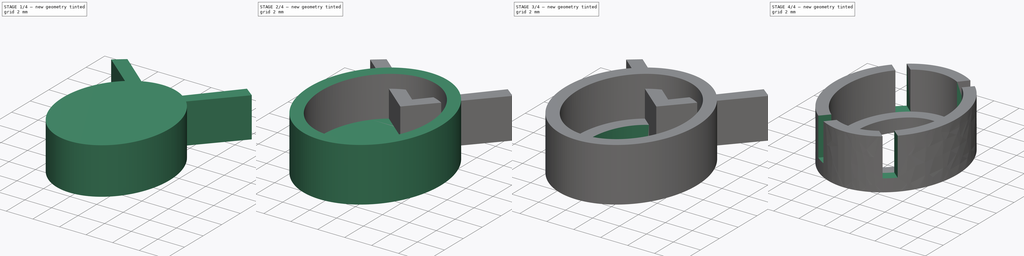
[diagram: build sequence overview — one tinted view per stage of 4, left to right]
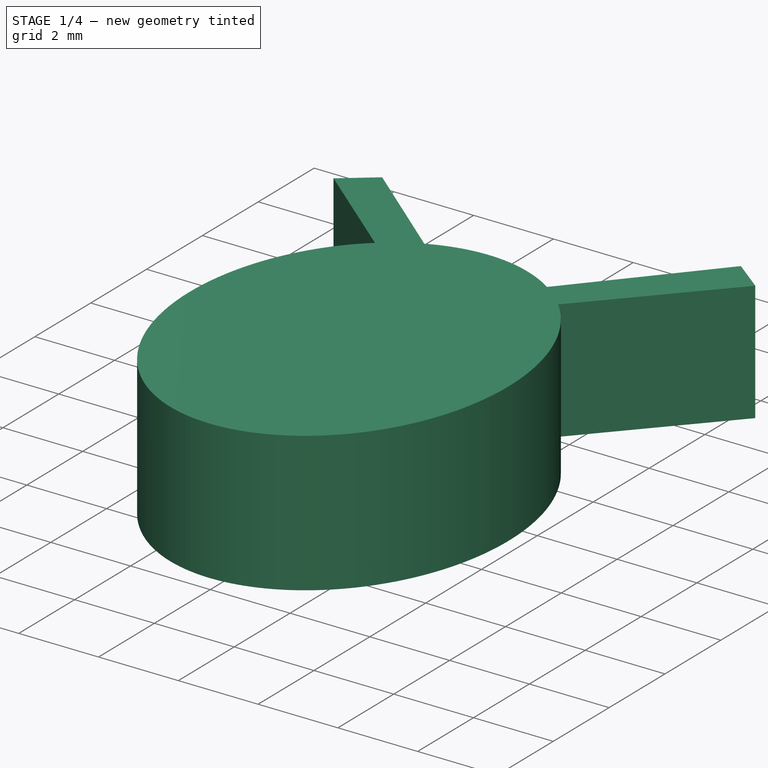
[diagram: stage 1 of 4 — iso view after this stage's code; geometry added in this stage tinted green]
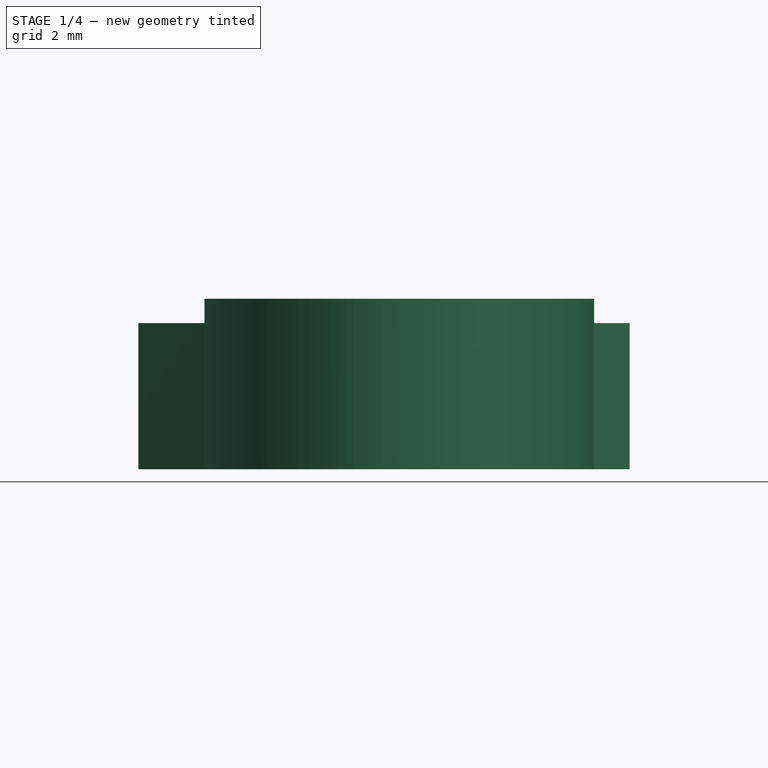
[diagram: stage 1 of 4 — front view after this stage's code; geometry added in this stage tinted green]
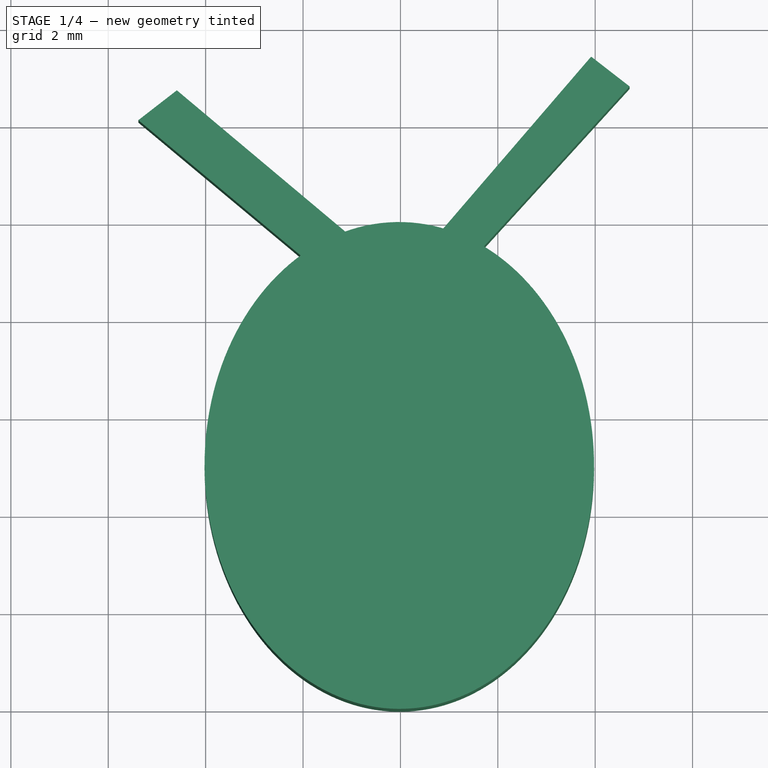
[diagram: stage 1 of 4 — top view after this stage's code; geometry added in this stage tinted green]
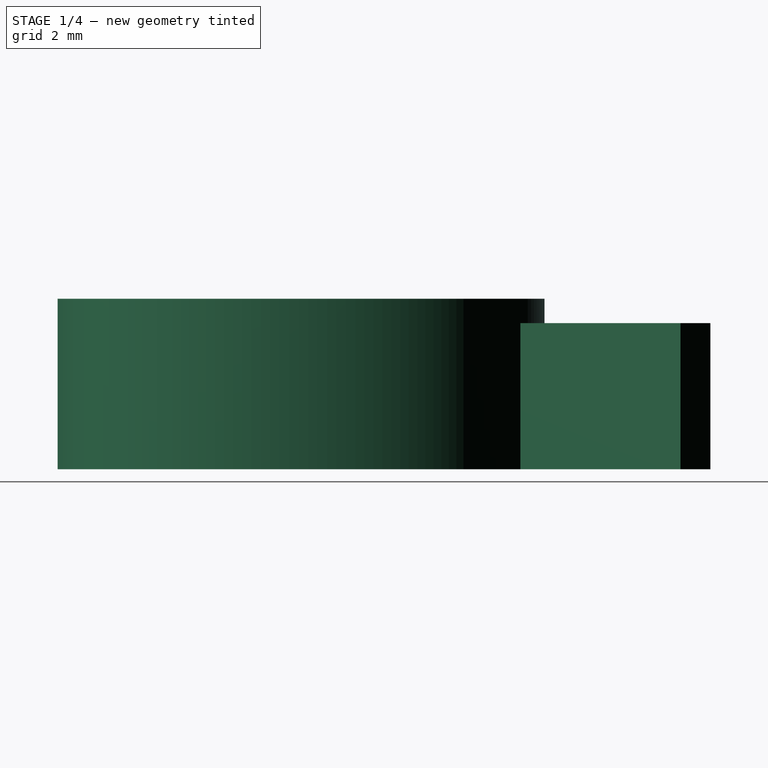
[diagram: stage 1 of 4 — right view after this stage's code; geometry added in this stage tinted green]
FCSTD DOCUMENT  (FreeCAD 0.19R)
Label: 10mmx8mm_oval_cabuchon
License: All rights reserved
LicenseURL: http://en.wikipedia.org/wiki/All_rights_reserved
objects: Sketcher::SketchObject×5, PartDesign::Pad×5, PartDesign::Body×5, Part::Cut×4, App::MeasureDistance×2
note: 24 computed .brp shape members not serialized (recipe doc carries the construction recipe); baked Part::Feature solids carry a one-line shape summary decoded from their .brp

FEATURE [Sketcher::SketchObject] Sketch001
  FullyConstrained = false
  MapMode = 5
  Support = -> [XY_Plane001]
  sketch-geometry (5):
    g0: Ellipse CenterX=-0.0228966 CenterY=4.99994 CenterZ=0 NormalX=0 NormalY=0 NormalZ=1 MajorRadius=5 MinorRadius=4 AngleXU=-1.56764
    g1: LineSegment StartX=-0.00709564 StartY=-3.02908e-05 StartZ=0 EndX=-0.0386976 EndY=9.99992 EndZ=0
    g2: LineSegment StartX=3.97708 StartY=5.01259 StartZ=0 EndX=-4.02288 EndY=4.9873 EndZ=0
    g3: GeomPoint X=-0.013416 Y=1.99996 Z=0
    g4: GeomPoint X=-0.0323772 Y=7.99993 Z=0
  constraints (4):
    c: InternalAlignment(g1-g4 -> g0) x4
    c: PointOnObject(g-1,g0)
    c: Distance(g1) = 10
    c: Distance(g2) = 8
FEATURE [PartDesign::Body] Body002
  Group = -> [Sketch002,Pad001]
  Origin = -> Origin002
  Placement = pos=(0,-0.85,0) rot=(0,0,1;0rad)
  Tip = -> Pad001
FEATURE [PartDesign::Pad] Pad002
  Direction = (1,1,1)
  Length = 3.5
  Length2 = 100
  Profile = -> Sketch001
  Type = 0
FEATURE [Sketcher::SketchObject] Sketch005
  FullyConstrained = false
  MapMode = 5
  Support = -> [XY_Plane005]
  sketch-geometry (11):
    g0: Ellipse CenterX=-0.0136565 CenterY=6.72484 CenterZ=0 NormalX=0 NormalY=0 NormalZ=1 MajorRadius=6.725 MinorRadius=5.725 AngleXU=-1.57931
    g1: LineSegment StartX=-0.0709434 StartY=8.80022e-05 StartZ=0 EndX=0.0436305 EndY=13.4496 EndZ=0
    g2: LineSegment StartX=5.71114 StartY=6.67608 StartZ=0 EndX=-5.73845 EndY=6.77361 EndZ=0
    g3: GeomPoint X=-0.0437137 Y=3.19652 Z=0
    g4: GeomPoint X=0.0164007 Y=10.2532 Z=0
    g5: LineSegment StartX=-4.59175 StartY=12.7144 StartZ=0 EndX=0.00451289 EndY=8.85769 EndZ=0
    g6: LineSegment StartX=0.00451289 StartY=8.85769 StartZ=0 EndX=3.91721 EndY=13.4064 EndZ=0
    g7: LineSegment StartX=3.91721 StartY=13.4064 StartZ=0 EndX=4.70737 EndY=12.7935 EndZ=0
    g8: LineSegment StartX=4.70737 StartY=12.7935 StartZ=0 EndX=-0.00604614 EndY=7.6182 EndZ=0
    g9: LineSegment StartX=-0.00604614 StartY=7.6182 StartZ=0 EndX=-5.38191 EndY=12.1015 EndZ=0
    g10: LineSegment StartX=-5.38191 StartY=12.1015 StartZ=0 EndX=-4.59175 EndY=12.7144 EndZ=0
  constraints (21):
    c: InternalAlignment(g1-g4 -> g0) x4
    c: PointOnObject(g-1,g0)
    c: Distance(g1) = 13.45
    c: Distance(g2) = 11.45
    c: PointOnObject(g5,g1)
    c: Coincident(g5,g6)
    c: Coincident(g6,g7)
    c: Coincident(g7,g8)
    c: PointOnObject(g8,g1)
    c: Coincident(g8,g9)
    c: Coincident(g9,g10)
    c: Coincident(g10,g5)
    c: Angle(g5) = -0.698132
    c: Distance(g10) = 1
    c: Distance(g7) = 1
    c: Distance(g5) = 6
    c: Distance(g6) = 6
    c: Distance(g9) = 7
    c: Distance(g8) = 7
    c: Angle(g10) = 0.659734
    c: Angle(g7) = -0.659734
FEATURE [PartDesign::Pad] Pad005
  Direction = (1,1,1)
  Length = 3
  Length2 = 100
  Profile = -> Sketch005
  Type = 0
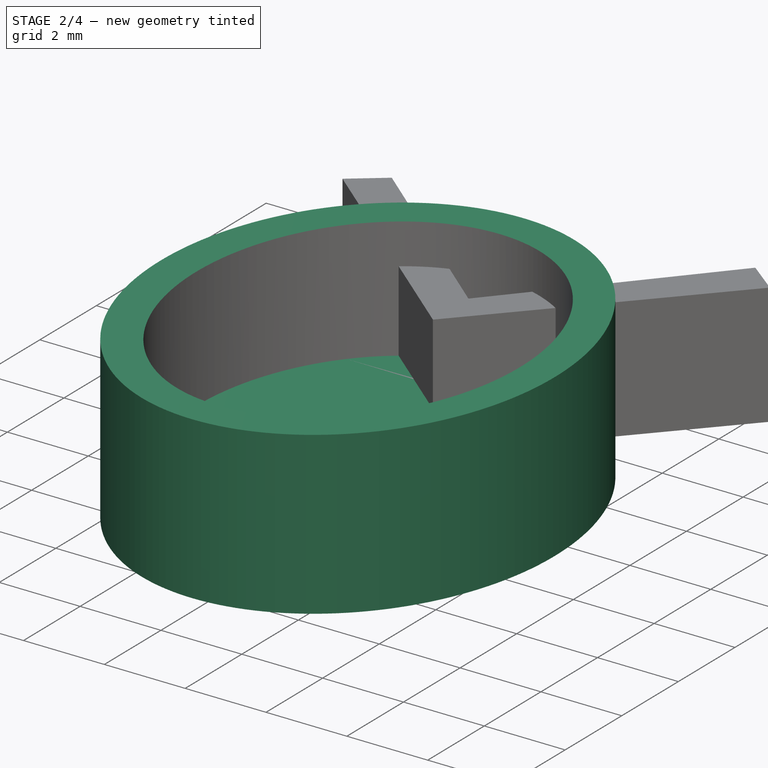
[diagram: stage 2 of 4 — iso view after this stage's code; geometry added in this stage tinted green]
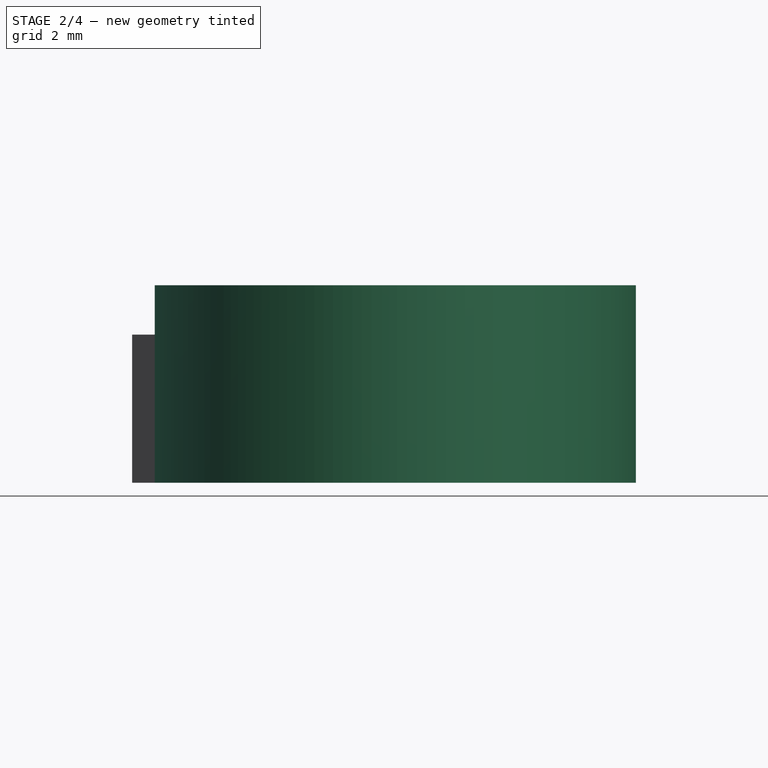
[diagram: stage 2 of 4 — front view after this stage's code; geometry added in this stage tinted green]
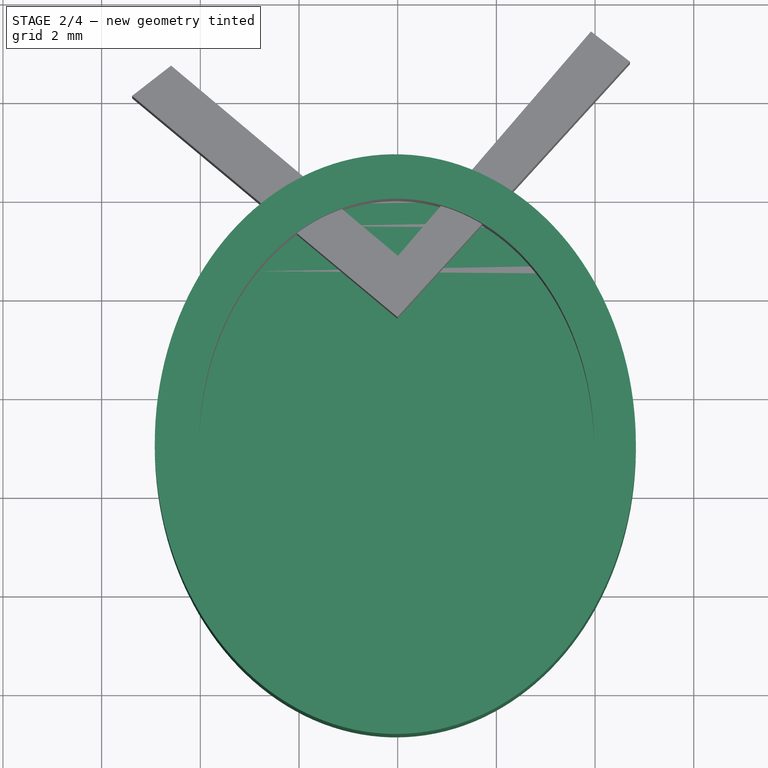
[diagram: stage 2 of 4 — top view after this stage's code; geometry added in this stage tinted green]
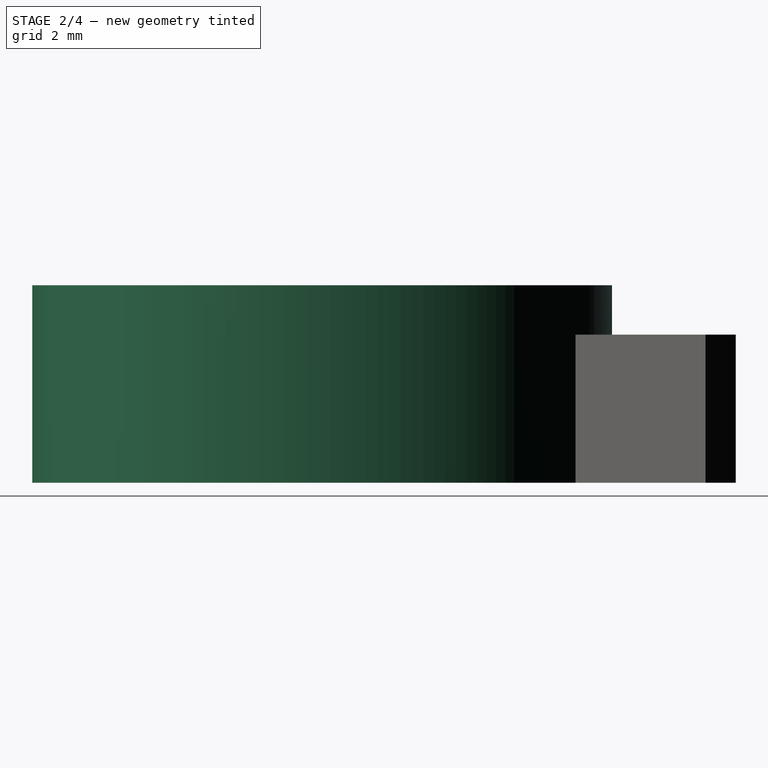
[diagram: stage 2 of 4 — right view after this stage's code; geometry added in this stage tinted green]
FEATURE [Sketcher::SketchObject] Sketch004
  FullyConstrained = false
  MapMode = 5
  Support = -> [XY_Plane004]
  sketch-geometry (11):
    g0: Ellipse CenterX=-0.0136565 CenterY=6.72484 CenterZ=0 NormalX=0 NormalY=0 NormalZ=1 MajorRadius=6.725 MinorRadius=5.725 AngleXU=-1.57931
    g1: LineSegment StartX=-0.0709434 StartY=8.80022e-05 StartZ=0 EndX=0.0436305 EndY=13.4496 EndZ=0
    g2: LineSegment StartX=5.71114 StartY=6.67608 StartZ=0 EndX=-5.73845 EndY=6.77361 EndZ=0
    g3: GeomPoint X=-0.0437137 Y=3.19652 Z=0
    g4: GeomPoint X=0.0164007 Y=10.2532 Z=0
    g5: LineSegment StartX=-4.59175 StartY=12.7144 StartZ=0 EndX=0.00451289 EndY=8.85769 EndZ=0
    g6: LineSegment StartX=0.00451289 StartY=8.85769 StartZ=0 EndX=3.91721 EndY=13.4064 EndZ=0
    g7: LineSegment StartX=3.91721 StartY=13.4064 StartZ=0 EndX=4.70737 EndY=12.7935 EndZ=0
    g8: LineSegment StartX=4.70737 StartY=12.7935 StartZ=0 EndX=-0.00604614 EndY=7.6182 EndZ=0
    g9: LineSegment StartX=-0.00604614 StartY=7.6182 StartZ=0 EndX=-5.38191 EndY=12.1015 EndZ=0
    g10: LineSegment StartX=-5.38191 StartY=12.1015 StartZ=0 EndX=-4.59175 EndY=12.7144 EndZ=0
  constraints (21):
    c: InternalAlignment(g1-g4 -> g0) x4
    c: PointOnObject(g-1,g0)
    c: Distance(g1) = 13.45
    c: Distance(g2) = 11.45
    c: PointOnObject(g5,g1)
    c: Coincident(g5,g6)
    c: Coincident(g6,g7)
    c: Coincident(g7,g8)
    c: PointOnObject(g8,g1)
    c: Coincident(g8,g9)
    c: Coincident(g9,g10)
    c: Coincident(g10,g5)
    c: Angle(g5) = -0.698132
    c: Distance(g10) = 1
    c: Distance(g7) = 1
    c: Distance(g5) = 6
    c: Distance(g6) = 6
    c: Distance(g9) = 7
    c: Distance(g8) = 7
    c: Angle(g10) = 0.659734
    c: Angle(g7) = -0.659734
FEATURE [Sketcher::SketchObject] Sketch002
  FullyConstrained = false
  MapMode = 5
  Support = -> [XY_Plane002]
  sketch-geometry (5):
    g0: Ellipse CenterX=-0.0479555 CenterY=5.8748 CenterZ=0 NormalX=0 NormalY=0 NormalZ=1 MajorRadius=5.875 MinorRadius=4.875 AngleXU=-1.565
    g1: LineSegment StartX=-0.0139029 StartY=-0.000104478 StartZ=0 EndX=-0.0820081 EndY=11.7497 EndZ=0
    g2: LineSegment StartX=4.82696 StartY=5.90305 StartZ=0 EndX=-4.92287 EndY=5.84654 EndZ=0
    g3: GeomPoint X=-0.0289514 Y=2.59613 Z=0
    g4: GeomPoint X=-0.0669596 Y=9.15346 Z=0
  constraints (4):
    c: InternalAlignment(g1-g4 -> g0) x4
    c: PointOnObject(g-1,g0)
    c: Distance(g1) = 11.75
    c: Distance(g2) = 9.75
FEATURE [PartDesign::Pad] Pad001
  Direction = (1,1,1)
  Length = 4
  Length2 = 100
  Profile = -> Sketch002
  Type = 0
FEATURE [PartDesign::Body] Body003
  Group = -> [Sketch003,Pad003]
  Origin = -> Origin003
  Placement = pos=(0,0.875,0) rot=(0,0,1;0rad)
  Tip = -> Pad003
FEATURE [PartDesign::Body] Body001
  Group = -> [Sketch001,Pad002]
  Origin = -> Origin001
  Placement = pos=(0,0,1) rot=(0,0,1;0rad)
  Tip = -> Pad002
FEATURE [Part::Cut] Cut036
  Base = -> Body002
  Tool = -> Body001
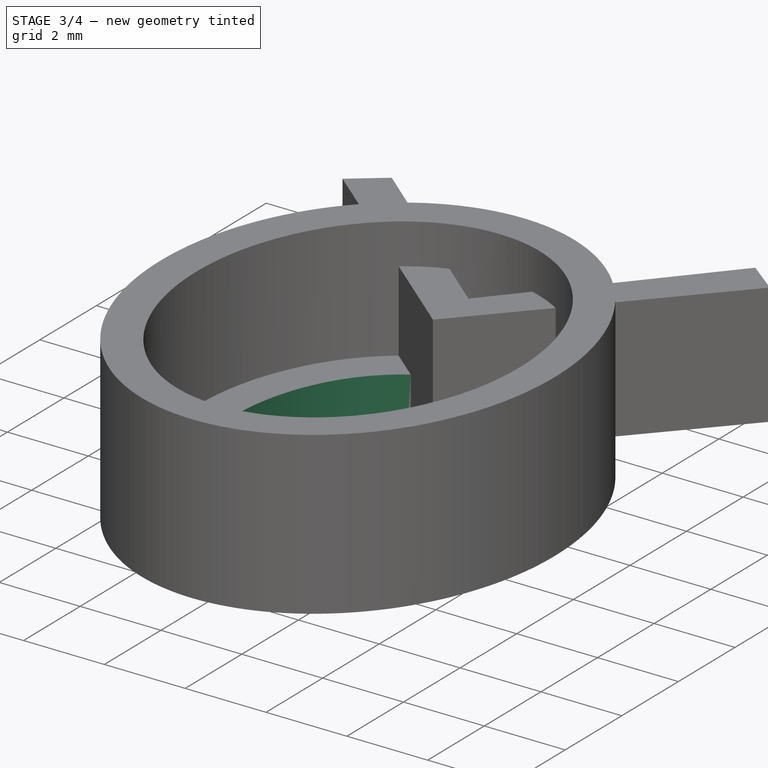
[diagram: stage 3 of 4 — iso view after this stage's code; geometry added in this stage tinted green]
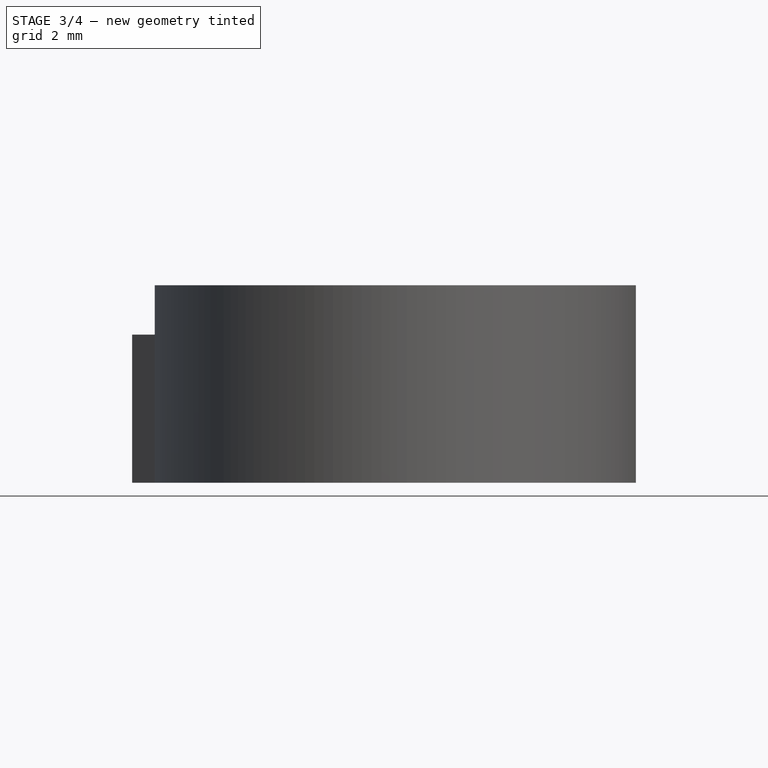
[diagram: stage 3 of 4 — front view after this stage's code; geometry added in this stage tinted green]
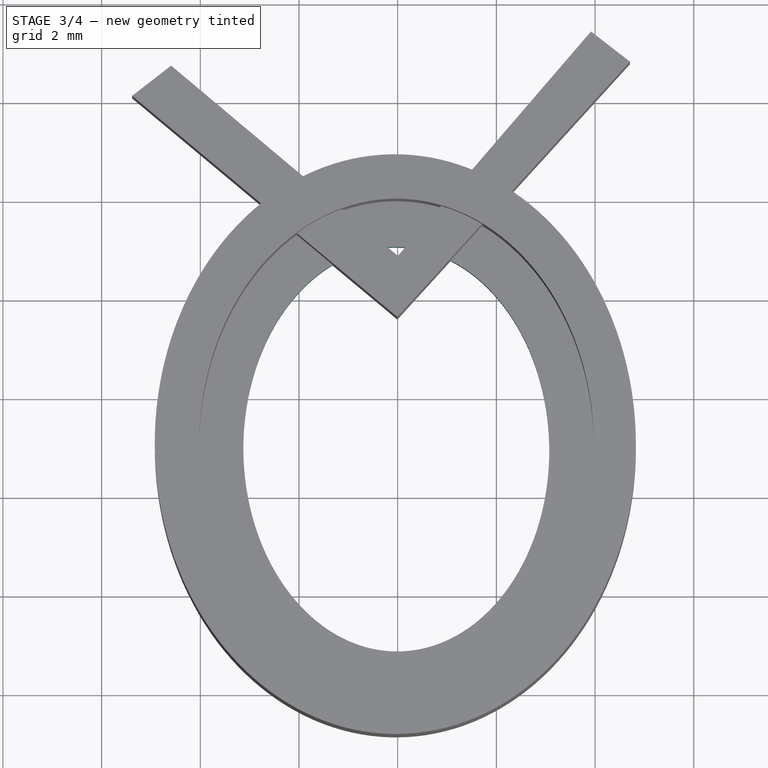
[diagram: stage 3 of 4 — top view after this stage's code; geometry added in this stage tinted green]
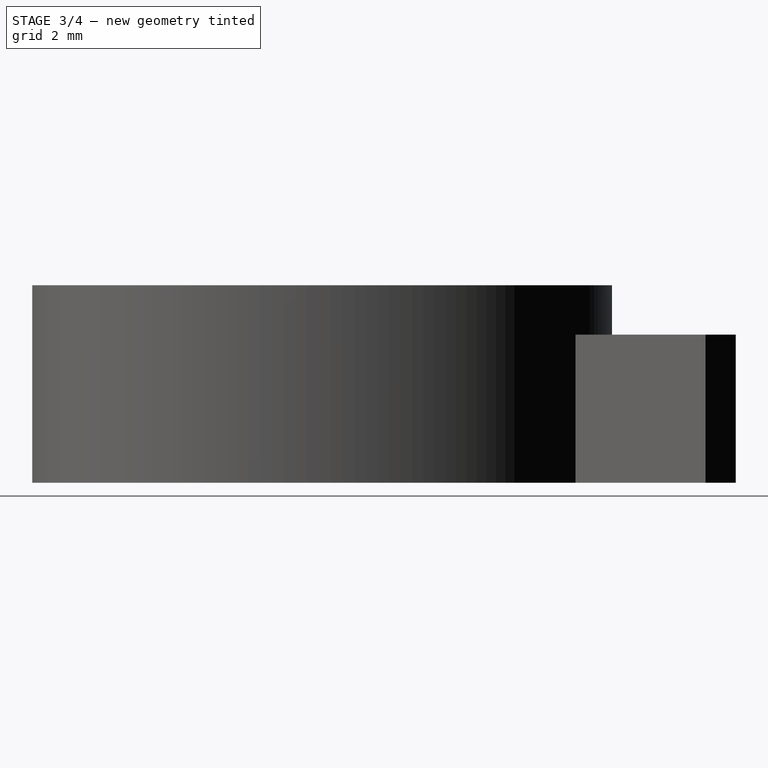
[diagram: stage 3 of 4 — right view after this stage's code; geometry added in this stage tinted green]
FEATURE [Sketcher::SketchObject] Sketch003
  FullyConstrained = false
  MapMode = 5
  Support = -> [XY_Plane003]
  sketch-geometry (5):
    g0: Ellipse CenterX=-0.0280719 CenterY=4.0999 CenterZ=0 NormalX=0 NormalY=0 NormalZ=1 MajorRadius=4.1 MinorRadius=3.1 AngleXU=-1.56035
    g1: LineSegment StartX=0.0147409 StartY=0.000127793 StartZ=0 EndX=-0.0708847 EndY=8.19968 EndZ=0
    g2: LineSegment StartX=3.07176 StartY=4.13227 StartZ=0 EndX=-3.1279 EndY=4.06753 EndZ=0
    g3: GeomPoint X=-5.27023e-05 Y=1.41677 Z=0
    g4: GeomPoint X=-0.0560911 Y=6.78304 Z=0
  constraints (4):
    c: InternalAlignment(g1-g4 -> g0) x4
    c: Tangent(g0,g-1)
    c: Distance(g1) = 8.2
    c: Distance(g2) = 6.2
FEATURE [PartDesign::Pad] Pad003
  Direction = (1,1,1)
  Length = 4.15
  Length2 = 100
  Profile = -> Sketch003
  Type = 0
FEATURE [PartDesign::Pad] Pad004
  Direction = (1,1,1)
  Length = 3
  Length2 = 100
  Profile = -> Sketch004
  Type = 0
FEATURE [PartDesign::Body] Body004
  Group = -> [Sketch004,Pad004]
  Origin = -> Origin004
  Placement = pos=(0,-1.125,1) rot=(0,0,1;0rad)
  Tip = -> Pad004
FEATURE [Part::Cut] Cut037
  Base = -> Cut036
  Tool = -> Body003
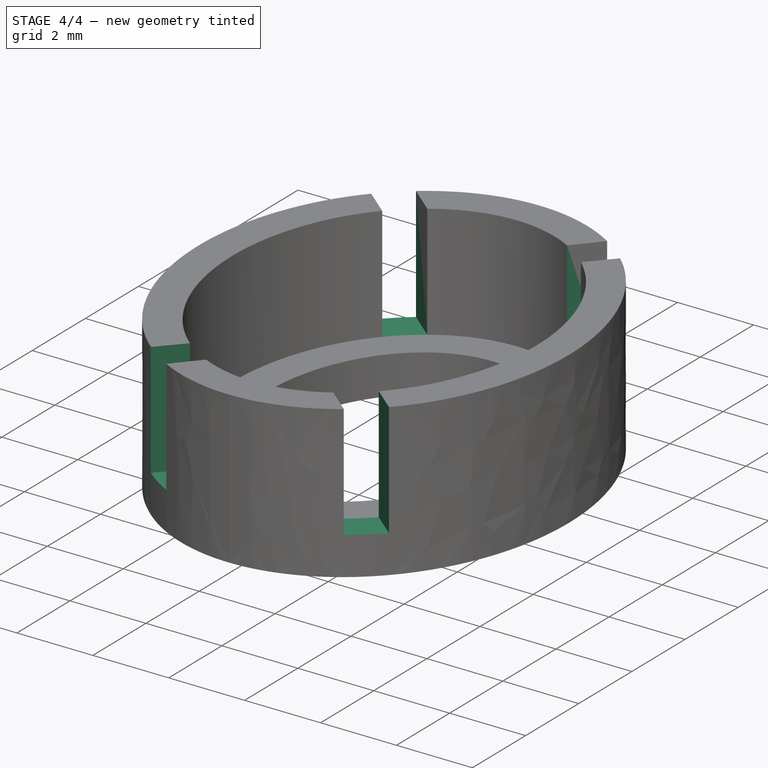
[diagram: stage 4 of 4 — iso view after this stage's code; geometry added in this stage tinted green]
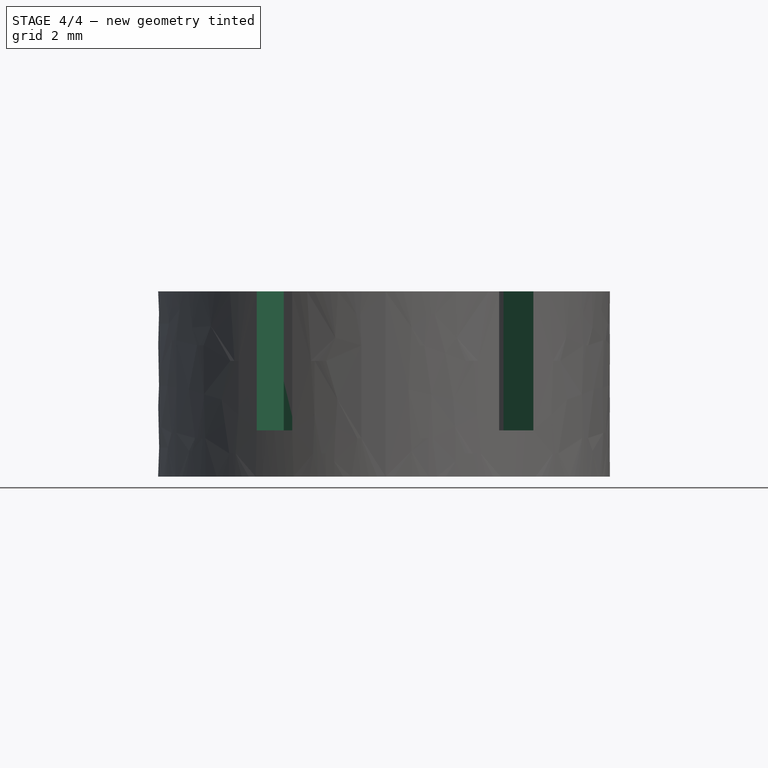
[diagram: stage 4 of 4 — front view after this stage's code; geometry added in this stage tinted green]
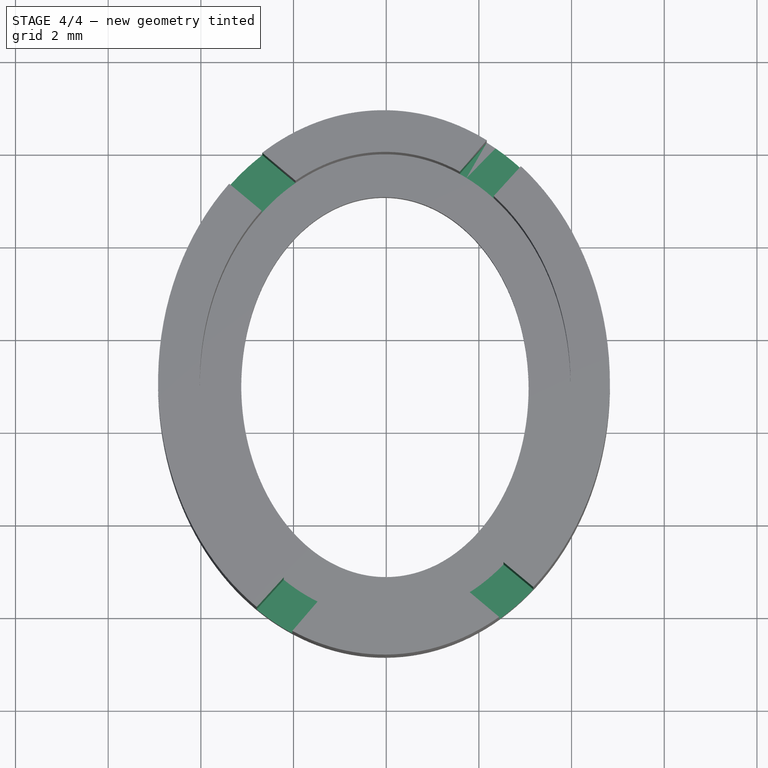
[diagram: stage 4 of 4 — top view after this stage's code; geometry added in this stage tinted green]
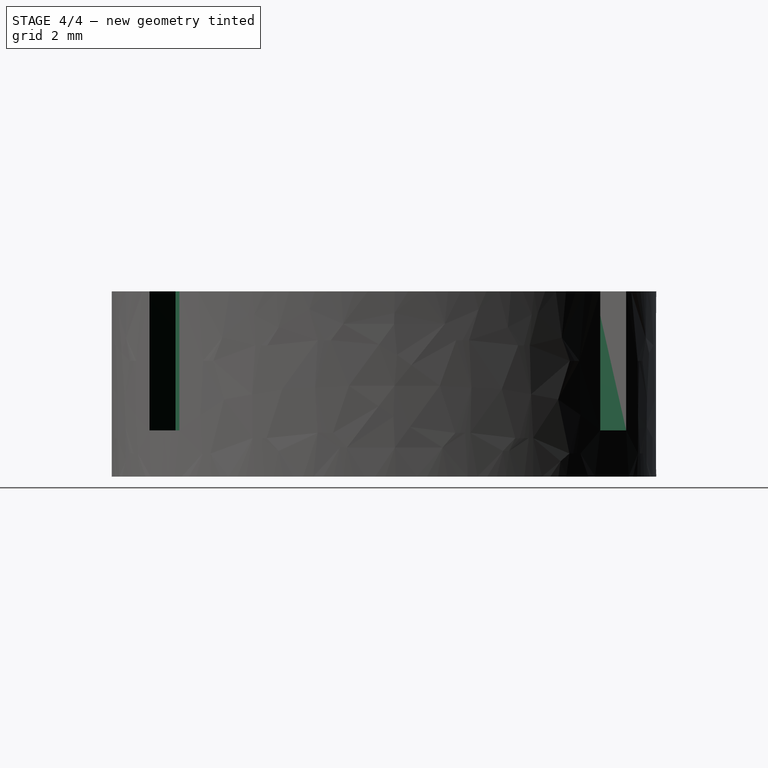
[diagram: stage 4 of 4 — right view after this stage's code; geometry added in this stage tinted green]
FEATURE [Part::Cut] Cut035  label="cabuchon"
  Base = -> Cut037
  Tool = -> Body004
FEATURE [PartDesign::Body] Body005
  Group = -> [Sketch005,Pad005]
  Origin = -> Origin005
  Placement = pos=(0,10.87,1) rot=(0,0,1;3.14159rad)
  Tip = -> Pad005
FEATURE [Part::Cut] Cut
  Base = -> Cut035
  Tool = -> Body005
FEATURE [App::MeasureDistance] Distance  label="Distance: 3.06 mm"
  Distance = 3.06018
  P1 = (-3.50789,4.49167,1.01007)
  P2 = (-3.47415,5.14272,4)
FEATURE [App::MeasureDistance] Distance001  label="Distance: 0.55 mm"
  Distance = 0.552061
  P1 = (-0.411143,9.96113,4)
  P2 = (-0.465991,10.5105,4)
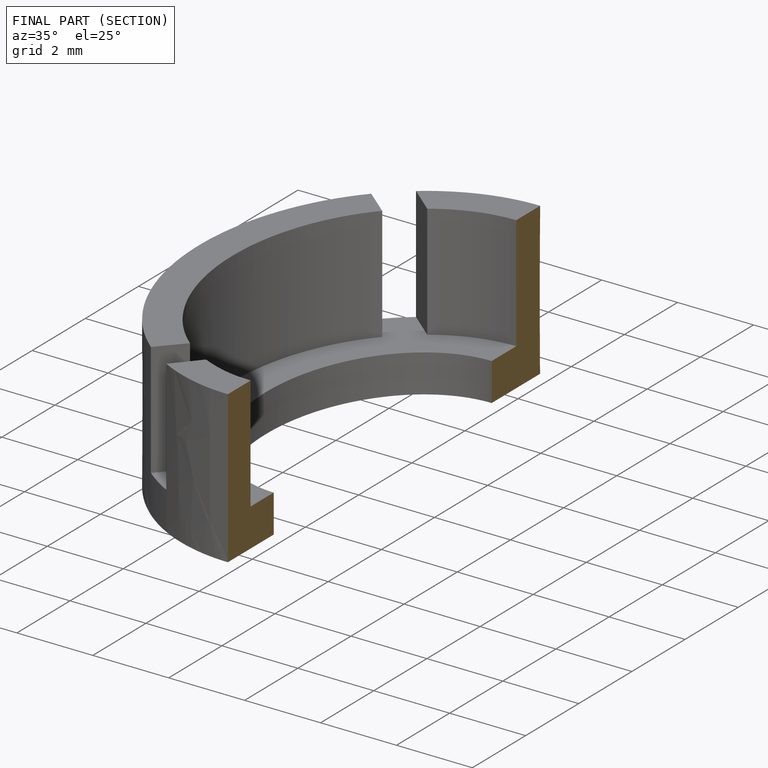
[diagram: finished part — half-section view (interior)]
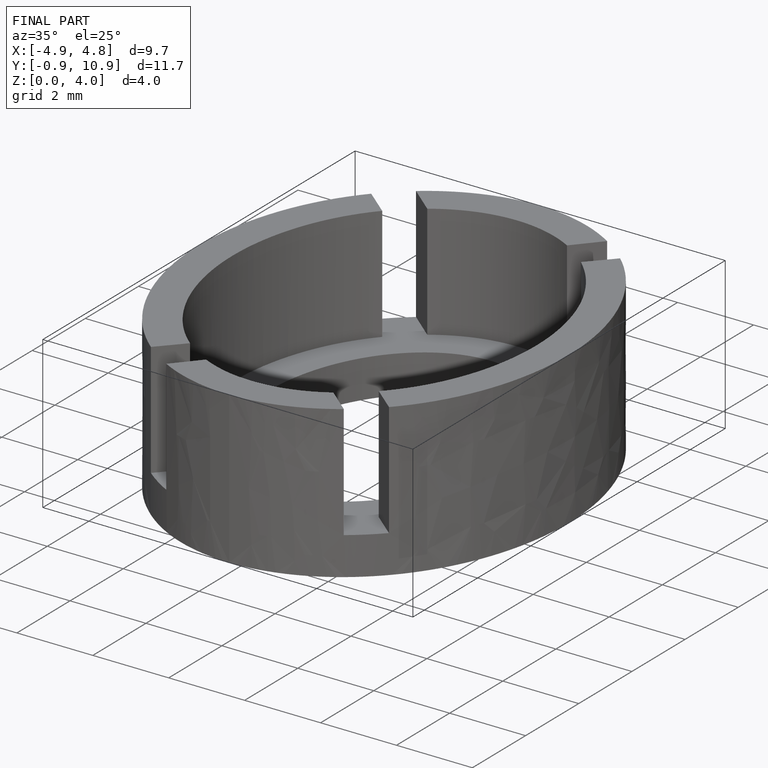
[diagram: finished part — iso view with bounding-box wireframe]
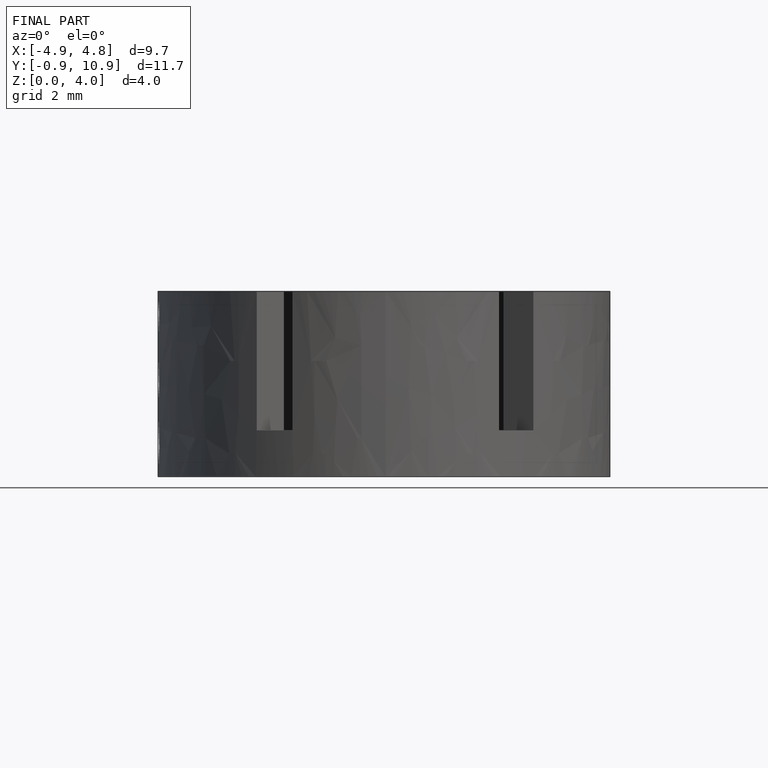
[diagram: finished part — front view with bounding-box wireframe]
